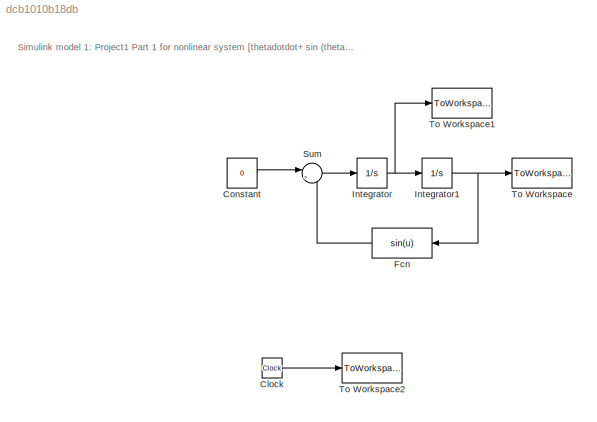
MODEL slx_dcb1010b18db
KIND model
BLOCK [Clock] Clock
BLOCK [Constant] Constant
  Value = 0
BLOCK [Fcn] Fcn
  Expr = sin(u)
BLOCK [Integrator] Integrator
  InitialCondition = xdot
  Ports = [1, 1]
BLOCK [Integrator] Integrator1
  InitialCondition = x
  Ports = [1, 1]
BLOCK [Sum] Sum
  IconShape = round
  InputSameDT = off
  Inputs = |+-
  OutDataTypeStr = Inherit: Inherit via internal rule
  Ports = [2, 1]
  SaturateOnIntegerOverflow = off
BLOCK [ToWorkspace] To Workspace
  FixptAsFi = on
  MaxDataPoints = inf
  Ports = [1]
  SampleTime = -1
  Save2DSignal = 3-D array (concatenate along third dimension)
  VariableName = x
BLOCK [ToWorkspace] To Workspace1
  FixptAsFi = on
  MaxDataPoints = inf
  Ports = [1]
  SampleTime = -1
  Save2DSignal = 3-D array (concatenate along third dimension)
  VariableName = xdot
BLOCK [ToWorkspace] To Workspace2
  FixptAsFi = on
  MaxDataPoints = inf
  Ports = [1]
  SampleTime = -1
  Save2DSignal = 3-D array (concatenate along third dimension)
  VariableName = t
ANNOTATION (root): Simulink model 1: Project1 Part 1 for nonlinear system [thetadotdot+ sin (theta)=0]
LINE Clock:1 -> To Workspace2:1
LINE Constant:1 -> Sum:1
LINE Fcn:1 -> Sum:2
NET Integrator1:1 -> Fcn:1, To Workspace:1
NET Integrator:1 -> Integrator1:1, To Workspace1:1
LINE Sum:1 -> Integrator:1
note: NET lines group one-source signal fan-out (src -> all destinations, sorted); 1:1 wires keep LINE
